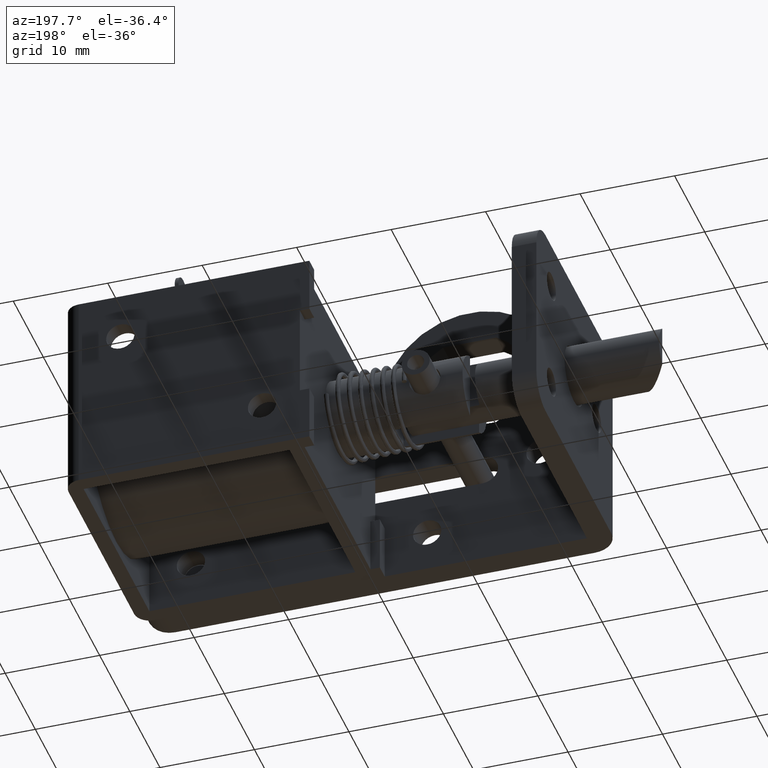
[diagram: clean part render]
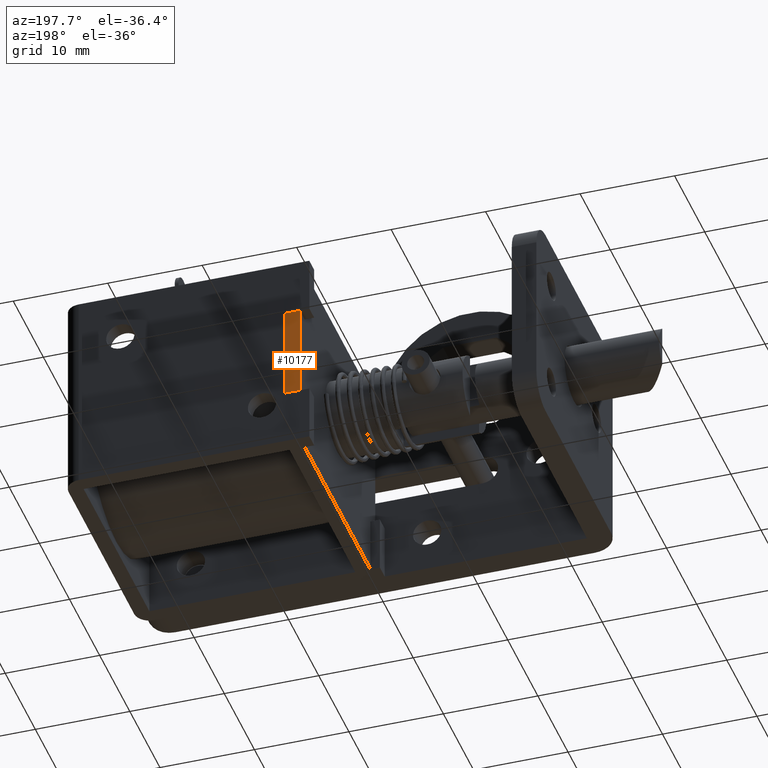
[diagram: same view with one face highlighted and labeled with its STEP entity id]
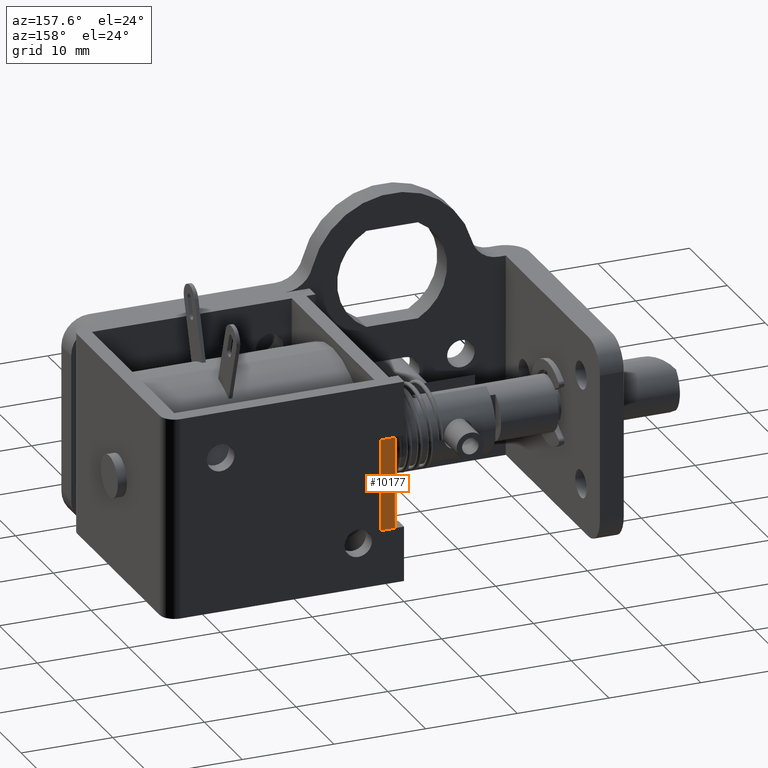
[diagram: same view with one face highlighted and labeled with its STEP entity id]
A machine part, auxiliary view. The second image highlights one B-rep face of the part: STEP entity #10177.
A second angle (auxiliary view) of the same face is appended — the face is thin or edge-on in the first view.
In plain terms, the highlighted planar face has unit normal (0, -1, 0).
Its self-contained STEP definition (entity closure, byte-faithful):
#553 = LINE ( 'NONE', #4787, #4842 ) ;
#829 = LINE ( 'NONE', #10525, #6729 ) ;
#1050 = ORIENTED_EDGE ( 'NONE', *, *, #4236, .T. ) ;
#1198 = FACE_OUTER_BOUND ( 'NONE', #2770, .T. ) ;
#1646 = CARTESIAN_POINT ( 'NONE',  ( 1010.000000000000000, 27.59999999999999800, -6.000000000000000000 ) ) ;
#1716 = LINE ( 'NONE', #1646, #3344 ) ;
#2037 = CARTESIAN_POINT ( 'NONE',  ( 1010.000000000000000, 27.59999999999999800, -16.00000000000000000 ) ) ;
#2098 = VERTEX_POINT ( 'NONE', #8917 ) ;
#2142 = DIRECTION ( 'NONE',  ( 0.0000000000000000000, -1.000000000000000000, 0.0000000000000000000 ) ) ;
#2770 = EDGE_LOOP ( 'NONE', ( #10035, #8144, #9594, #1050 ) ) ;
#2909 = PLANE ( 'NONE',  #4861 ) ;
#3302 = VERTEX_POINT ( 'NONE', #4577 ) ;
#3344 = VECTOR ( 'NONE', #7297, 1000.000000000000000 ) ;
#3752 = VERTEX_POINT ( 'NONE', #10318 ) ;
#3984 = DIRECTION ( 'NONE',  ( -0.0000000000000000000, -0.0000000000000000000, 1.000000000000000000 ) ) ;
#4236 = EDGE_CURVE ( 'NONE', #5784, #3752, #10370, .T. ) ;
#4577 = CARTESIAN_POINT ( 'NONE',  ( 10.00000000000000000, 27.59999999999999800, -6.000000000000000000 ) ) ;
#4787 = CARTESIAN_POINT ( 'NONE',  ( 11.60000599999978000, 27.59999999999999800, -16.00000000000000000 ) ) ;
#4842 = VECTOR ( 'NONE', #9692, 1000.000000000000000 ) ;
#4861 = AXIS2_PLACEMENT_3D ( 'NONE', #2037, #2142, #7807 ) ;
#5784 = VERTEX_POINT ( 'NONE', #6416 ) ;
#6416 = CARTESIAN_POINT ( 'NONE',  ( 11.60000599999978000, 27.59999999999999800, -16.00000000000000000 ) ) ;
#6729 = VECTOR ( 'NONE', #3984, 1000.000000000000000 ) ;
#7297 = DIRECTION ( 'NONE',  ( -1.000000000000000000, 0.0000000000000000000, 0.0000000000000000000 ) ) ;
#7807 = DIRECTION ( 'NONE',  ( 0.0000000000000000000, 0.0000000000000000000, -1.000000000000000000 ) ) ;
#7926 = DIRECTION ( 'NONE',  ( -1.000000000000000000, 0.0000000000000000000, 0.0000000000000000000 ) ) ;
#8144 = ORIENTED_EDGE ( 'NONE', *, *, #9566, .F. ) ;
#8611 = EDGE_CURVE ( 'NONE', #5784, #2098, #553, .T. ) ;
#8917 = CARTESIAN_POINT ( 'NONE',  ( 11.60000599999978000, 27.59999999999999800, -6.000000000000000000 ) ) ;
#9566 = EDGE_CURVE ( 'NONE', #2098, #3302, #1716, .T. ) ;
#9570 = CARTESIAN_POINT ( 'NONE',  ( 1010.000000000000000, 27.59999999999999800, -16.00000000000000000 ) ) ;
#9594 = ORIENTED_EDGE ( 'NONE', *, *, #8611, .F. ) ;
#9692 = DIRECTION ( 'NONE',  ( -0.0000000000000000000, -0.0000000000000000000, 1.000000000000000000 ) ) ;
#9969 = EDGE_CURVE ( 'NONE', #3752, #3302, #829, .T. ) ;
#10035 = ORIENTED_EDGE ( 'NONE', *, *, #9969, .T. ) ;
#10118 = VECTOR ( 'NONE', #7926, 1000.000000000000000 ) ;
#10177 = ADVANCED_FACE ( 'NONE', ( #1198 ), #2909, .F. ) ;
#10318 = CARTESIAN_POINT ( 'NONE',  ( 10.00000000000000000, 27.59999999999999800, -16.00000000000000000 ) ) ;
#10370 = LINE ( 'NONE', #9570, #10118 ) ;
#10525 = CARTESIAN_POINT ( 'NONE',  ( 10.00000000000000000, 27.59999999999999800, -16.00000000000000000 ) ) ;